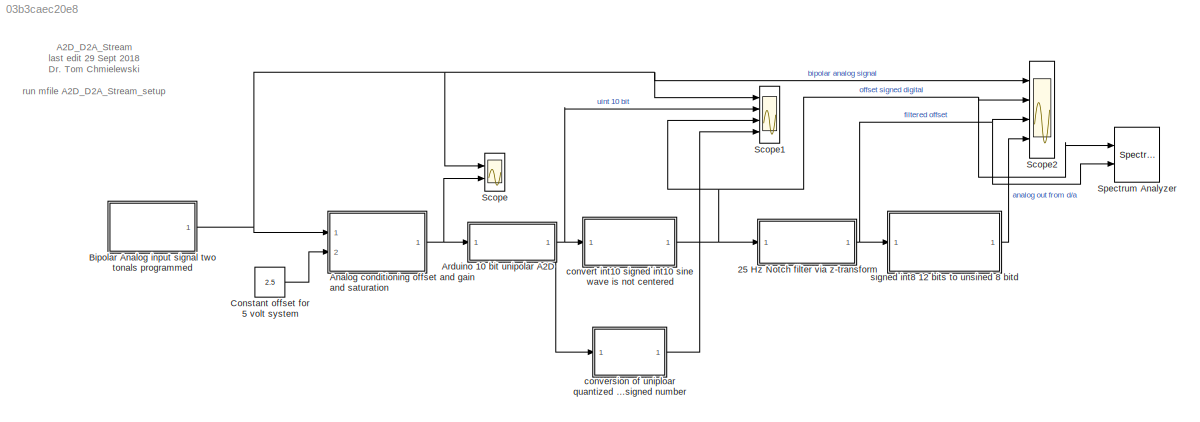
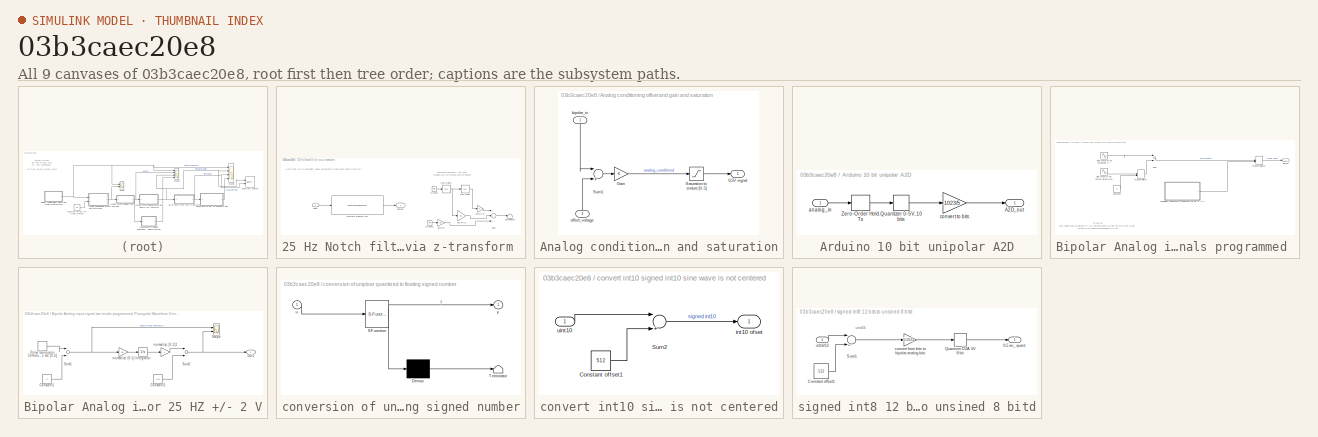
[diagram: thumbnail index - all 9 canvases of the model, root first then tree order]
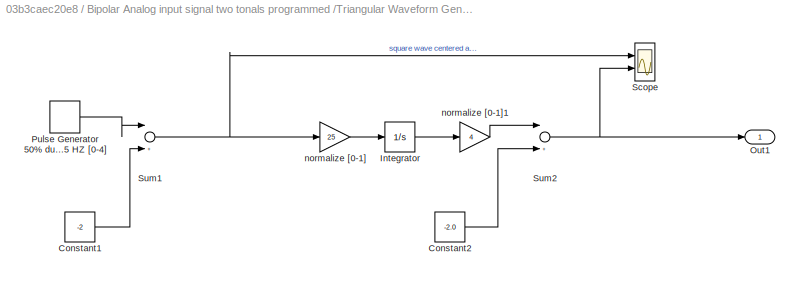
MODEL slx_03b3caec20e8
KIND model
CONFIG AbsTol = auto
CONFIG EnableMultiTasking = off
CONFIG FixedStep = Ts
CONFIG MaxStep = auto
CONFIG MinStep = auto
CONFIG RelTol = 1e-3
CONFIG SampleTimeConstraint = Unconstrained
CONFIG Solver = FixedStepAuto
CONFIG SolverName = FixedStepAuto
CONFIG StartTime = 0.0
CONFIG StopTime = 2
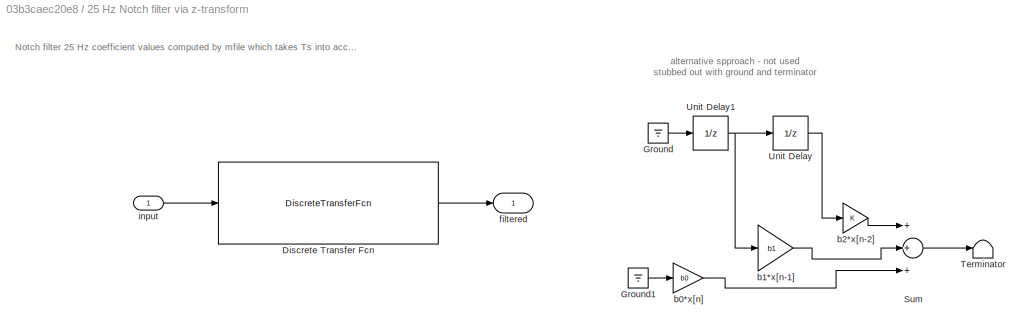
BLOCK [SubSystem] 25 Hz Notch filter via z-transform 
  Ports = [1, 1]
  RequestExecContextInheritance = off
  Variant = off
BLOCK [DiscreteTransferFcn] 25 Hz Notch filter via z-transform /Discrete Transfer Fcn
  Denominator = [1 0 0]
  InputPortMap = u0
  Numerator = [b0 b1 b2 ]
  Ports = [1, 1]
BLOCK [Ground] 25 Hz Notch filter via z-transform /Ground
BLOCK [Ground] 25 Hz Notch filter via z-transform /Ground1
BLOCK [Sum] 25 Hz Notch filter via z-transform /Sum
  InputSameDT = off
  Inputs = +++
  OutDataTypeStr = Inherit: Inherit via internal rule
  Ports = [3, 1]
  SaturateOnIntegerOverflow = off
BLOCK [Terminator] 25 Hz Notch filter via z-transform /Terminator
BLOCK [UnitDelay] 25 Hz Notch filter via z-transform /Unit Delay
  SampleTime = Ts
BLOCK [UnitDelay] 25 Hz Notch filter via z-transform /Unit Delay1
  SampleTime = Ts
BLOCK [Gain] 25 Hz Notch filter via z-transform /b0*x[n]
  Gain = b0
  OutDataTypeStr = Inherit: Inherit via internal rule
  ParamDataTypeStr = Inherit: Inherit via internal rule
  SaturateOnIntegerOverflow = off
BLOCK [Gain] 25 Hz Notch filter via z-transform /b1*x[n-1]
  Gain = b1
  OutDataTypeStr = Inherit: Inherit via internal rule
  ParamDataTypeStr = Inherit: Inherit via internal rule
  SaturateOnIntegerOverflow = off
BLOCK [Gain] 25 Hz Notch filter via z-transform /b2*x[n-2]
  OutDataTypeStr = Inherit: Inherit via internal rule
  ParamDataTypeStr = Inherit: Inherit via internal rule
  SaturateOnIntegerOverflow = off
BLOCK [Outport] 25 Hz Notch filter via z-transform /filtered 
  IconDisplay = Port number
BLOCK [Inport] 25 Hz Notch filter via z-transform /input
  IconDisplay = Port number
BLOCK [SubSystem] Analog conditioning offset and gain and saturation
  Ports = [2, 1]
  RequestExecContextInheritance = off
  Variant = off
BLOCK [Outport] Analog conditioning offset and gain and saturation/0-5V signal
  IconDisplay = Port number
BLOCK [Gain] Analog conditioning offset and gain and saturation/Gain
  OutDataTypeStr = Inherit: Inherit via internal rule
  ParamDataTypeStr = Inherit: Inherit via internal rule
  SaturateOnIntegerOverflow = off
BLOCK [Saturate] Analog conditioning offset and gain and saturation/Saturation to endure [0, 5]
  InputPortMap = u0
  LowerLimit = 0
  Ports = [1, 1]
  UpperLimit = 5.0
BLOCK [Sum] Analog conditioning offset and gain and saturation/Sum1
  InputSameDT = off
  Inputs = |++
  OutDataTypeStr = Inherit: Inherit via internal rule
  Ports = [2, 1]
  SaturateOnIntegerOverflow = off
BLOCK [Inport] Analog conditioning offset and gain and saturation/bipolar_in
  IconDisplay = Port number
BLOCK [Inport] Analog conditioning offset and gain and saturation/offset_voltage
  IconDisplay = Port number
  Port = 2
BLOCK [SubSystem] Arduino 10 bit unipolar A2D
  Ports = [1, 1]
  RequestExecContextInheritance = off
  Variant = off
BLOCK [Outport] Arduino 10 bit unipolar A2D/A2D_out
  IconDisplay = Port number
BLOCK [Quantizer] Arduino 10 bit unipolar A2D/Quantizer 0-5V, 10 bits
  QuantizationInterval = (5/2^10)
BLOCK [ZeroOrderHold] Arduino 10 bit unipolar A2D/Zero-Order Hold, Ts
  SampleTime = Ts
BLOCK [Inport] Arduino 10 bit unipolar A2D/analog_in
  IconDisplay = Port number
BLOCK [Gain] Arduino 10 bit unipolar A2D/convert to bits
  Gain = 1023/5
  OutDataTypeStr = Inherit: Inherit via internal rule
  ParamDataTypeStr = Inherit: Inherit via internal rule
  SaturateOnIntegerOverflow = off
BLOCK [SubSystem] Bipolar Analog input signal two tonals programmed 
  Ports = [0, 1]
  RequestExecContextInheritance = off
  Variant = off
BLOCK [Constant] Bipolar Analog input signal two tonals programmed /Constant
  Value = 0
BLOCK [ManualSwitch] Bipolar Analog input signal two tonals programmed /Manual Switch
BLOCK [ManualSwitch] Bipolar Analog input signal two tonals programmed /Manual Switch1
BLOCK [Sin] Bipolar Analog input signal two tonals programmed /Sine Wave 50 Hz  amplitude 1.7
  Amplitude = 1.7
  Frequency = (2*pi)*50
  Ports = [0, 1]
  SampleTime = 0
BLOCK [Sin] Bipolar Analog input signal two tonals programmed /Sine Wave to be notched Fn 25 Hz analog amplitude 0,66
  Amplitude = 0.66
  Frequency = (2*pi)*25
  Ports = [0, 1]
  SampleTime = 0
BLOCK [Sum] Bipolar Analog input signal two tonals programmed /Sum
  InputSameDT = off
  Inputs = |++
  OutDataTypeStr = Inherit: Inherit via internal rule
  Ports = [2, 1]
  SaturateOnIntegerOverflow = off
BLOCK [SubSystem] Bipolar Analog input signal two tonals programmed /Triangular Waveform Generator 25 HZ +//- 2 V
  Ports = [0, 1]
  RequestExecContextInheritance = off
  Variant = off
BLOCK [Constant] Bipolar Analog input signal two tonals programmed /Triangular Waveform Generator 25 HZ +//- 2 V/Constant1
  Value = -2
BLOCK [Constant] Bipolar Analog input signal two tonals programmed /Triangular Waveform Generator 25 HZ +//- 2 V/Constant2
  Value = -2.0
BLOCK [Integrator] Bipolar Analog input signal two tonals programmed /Triangular Waveform Generator 25 HZ +//- 2 V/Integrator
  Ports = [1, 1]
BLOCK [Outport] Bipolar Analog input signal two tonals programmed /Triangular Waveform Generator 25 HZ +//- 2 V/Out1
  IconDisplay = Port number
BLOCK [DiscretePulseGenerator] Bipolar Analog input signal two tonals programmed /Triangular Waveform Generator 25 HZ +//- 2 V/Pulse Generator 50% duty 25 HZ [0-4]
  Amplitude = 4
  Period = 1/25
  Ports = [0, 1]
  PulseType = Time based
  PulseWidth = 50
BLOCK [Scope] Bipolar Analog input signal two tonals programmed /Triangular Waveform Generator 25 HZ +//- 2 V/Scope
  NumInputPorts = 2
  Ports = [2]
  ScopeSpecificationString = Simulink.scopes.TimeScopeBlockCfg('CurrentConfiguration', extmgr.ConfigurationSet(extmgr.Configuration('Core','General UI',true),extmgr.Configuration('Core','Source UI',true),extmgr.Configuration('Sources','WiredSimulink',true,'DataLoggingVariableName','ScopeData1'),extmgr.Configuration('Visuals','Time Domain',true,'SerializedDisplays',{struct('MinYLimReal','-2.5','MaxYLimReal','2.5','YLabelReal',...<+2116ch>
BLOCK [Sum] Bipolar Analog input signal two tonals programmed /Triangular Waveform Generator 25 HZ +//- 2 V/Sum1
  InputSameDT = off
  Inputs = |++
  OutDataTypeStr = Inherit: Inherit via internal rule
  Ports = [2, 1]
  SaturateOnIntegerOverflow = off
BLOCK [Sum] Bipolar Analog input signal two tonals programmed /Triangular Waveform Generator 25 HZ +//- 2 V/Sum2
  InputSameDT = off
  Inputs = |++
  OutDataTypeStr = Inherit: Inherit via internal rule
  Ports = [2, 1]
  SaturateOnIntegerOverflow = off
BLOCK [Gain] Bipolar Analog input signal two tonals programmed /Triangular Waveform Generator 25 HZ +//- 2 V/normalize [0-1]
  Gain = 25
  OutDataTypeStr = Inherit: Inherit via internal rule
  ParamDataTypeStr = Inherit: Inherit via internal rule
  SaturateOnIntegerOverflow = off
BLOCK [Gain] Bipolar Analog input signal two tonals programmed /Triangular Waveform Generator 25 HZ +//- 2 V/normalize [0-1]1
  Gain = 4
  OutDataTypeStr = Inherit: Inherit via internal rule
  ParamDataTypeStr = Inherit: Inherit via internal rule
  SaturateOnIntegerOverflow = off
BLOCK [Outport] Bipolar Analog input signal two tonals programmed /sig_out
  IconDisplay = Port number
BLOCK [Constant] Constant offset for 5 volt system
  Value = 2.5
BLOCK [Scope] Scope
  NumInputPorts = 2
  Ports = [2]
  ScopeSpecificationString = Simulink.scopes.TimeScopeBlockCfg('CurrentConfiguration', extmgr.ConfigurationSet(extmgr.Configuration('Core','General UI',true),extmgr.Configuration('Core','Source UI',true),extmgr.Configuration('Sources','WiredSimulink',true),extmgr.Configuration('Visuals','Time Domain',true,'SerializedDisplays',{struct('MinYLimReal','-2.5','MaxYLimReal','2.5','YLabelReal','','MinYLimMag','0.00000','MaxYLimMag',...<+2099ch>
BLOCK [Scope] Scope1
  NumInputPorts = 4
  Ports = [4]
  ScopeSpecificationString = Simulink.scopes.TimeScopeBlockCfg('CurrentConfiguration', extmgr.ConfigurationSet(extmgr.Configuration('Core','General UI',true),extmgr.Configuration('Core','Source UI',true),extmgr.Configuration('Sources','WiredSimulink',true,'DataLoggingVariableName','ScopeData1'),extmgr.Configuration('Visuals','Time Domain',true,'SerializedDisplays',{struct('MinYLimReal','-2.5','MaxYLimReal','2.5','YLabelReal',...<+3737ch>
BLOCK [Scope] Scope2
  NumInputPorts = 4
  Ports = [4]
  ScopeSpecificationString = Simulink.scopes.TimeScopeBlockCfg('CurrentConfiguration', extmgr.ConfigurationSet(extmgr.Configuration('Core','General UI',true),extmgr.Configuration('Core','Source UI',true),extmgr.Configuration('Sources','WiredSimulink',true,'DataLoggingVariableName','ScopeData2'),extmgr.Configuration('Visuals','Time Domain',true,'SerializedDisplays',{struct('MinYLimReal','-2.5','MaxYLimReal','2.5','YLabelReal',...<+3492ch>
BLOCK [SpectrumAnalyzer] Spectrum Analyzer
  NumInputPorts = 2
  Ports = [2]
  ScopeSpecificationString = spbscopes.SpectrumAnalyzerBlockCfg('CurrentConfiguration', extmgr.ConfigurationSet(extmgr.Configuration('Core','General UI',true),extmgr.Configuration('Core','Source UI',true),extmgr.Configuration('Sources','WiredSimulink',true),extmgr.Configuration('Visuals','Spectrum',true,'AxesProperties',struct('Color',{[0 0 0],[0 0 0]},'XColor',{[0.686274509803922 0.686274509803922 0.686274509803922],[0.68627...<+1858ch>
BLOCK [SubSystem] conversion of uniploar quantized to floating signed number
  ErrorFcn = Stateflow.Translate.translate
  PermitHierarchicalResolution = ExplicitOnly
  Ports = [1, 1]
  RequestExecContextInheritance = off
  SFBlockType = MATLAB Function
  TreatAsAtomicUnit = on
  Variant = off
BLOCK [Demux] conversion of uniploar quantized to floating signed number/ Demux 
  Outputs = 1
  Ports = [1, 1]
BLOCK [S-Function] conversion of uniploar quantized to floating signed number/ SFunction 
  EnableBusSupport = on
  FunctionName = sf_sfun
  PortCounts = [1 2]
  Ports = [1, 2]
  SFcnIsStateOwnerBlock = off
  SFunctionDeploymentMode = off
  Tag = Stateflow S-Function A2d_D2A_Stream 1
BLOCK [Terminator] conversion of uniploar quantized to floating signed number/ Terminator 
BLOCK [Inport] conversion of uniploar quantized to floating signed number/u
  IconDisplay = Port number
BLOCK [Outport] conversion of uniploar quantized to floating signed number/y
  IconDisplay = Port number
BLOCK [SubSystem] convert int10 signed int10 sine wave is not centered
  Ports = [1, 1]
  RequestExecContextInheritance = off
  Variant = off
BLOCK [Constant] convert int10 signed int10 sine wave is not centered/Constant offset1
  Value = 512
BLOCK [Sum] convert int10 signed int10 sine wave is not centered/Sum2
  InputSameDT = off
  Inputs = |+-
  OutDataTypeStr = Inherit: Inherit via internal rule
  Ports = [2, 1]
  SaturateOnIntegerOverflow = off
BLOCK [Outport] convert int10 signed int10 sine wave is not centered/int10 ofset
  IconDisplay = Port number
BLOCK [Inport] convert int10 signed int10 sine wave is not centered/uint10
  IconDisplay = Port number
BLOCK [SubSystem] signed int8 12 bits to unsined 8 bitd
  Ports = [1, 1]
  RequestExecContextInheritance = off
  Variant = off
BLOCK [Outport] signed int8 12 bits to unsined 8 bitd/0-5 an_ quant
  IconDisplay = Port number
BLOCK [Constant] signed int8 12 bits to unsined 8 bitd/Constant offset1
  Value = 512
BLOCK [Quantizer] signed int8 12 bits to unsined 8 bitd/Quantizer D2A 5V 8 bit
  QuantizationInterval = (5/2^8)
BLOCK [Sum] signed int8 12 bits to unsined 8 bitd/Sum1
  InputSameDT = off
  Inputs = |++
  OutDataTypeStr = Inherit: Inherit via internal rule
  Ports = [2, 1]
  SaturateOnIntegerOverflow = off
BLOCK [Gain] signed int8 12 bits to unsined 8 bitd/convert from bits  to bipolar analog bits
  Gain = 5/1023
  OutDataTypeStr = Inherit: Inherit via internal rule
  ParamDataTypeStr = Inherit: Inherit via internal rule
  SaturateOnIntegerOverflow = off
BLOCK [Inport] signed int8 12 bits to unsined 8 bitd/int16//12
  IconDisplay = Port number
ANNOTATION (root): A2D_D2A_Stream last edit 29 Sept 2018 Dr. Tom Chmielewski run mfile A2D_D2A_Stream_setup
ANNOTATION 25 Hz Notch filter via z-transform : Notch filter 25 Hz coefficient values computed by mfile which takes Ts into account
ANNOTATION 25 Hz Notch filter via z-transform : alternative spproach - not used stubbed out with ground and terminator
ANNOTATION Bipolar Analog input signal two tonals programmed : Fs 500 Hz both signals have amplitude of 2 for demonstration so that we can offset in analog domain remove 25 Hz signal corresponding to 0.1*pi
ANNOTATION signed int8 12 bits to unsined 8 bitd: uint16
LINE 25 Hz Notch filter via z-transform /Discrete Transfer Fcn:1 -> 25 Hz Notch filter via z-transform /filtered :1
LINE 25 Hz Notch filter via z-transform /Ground1:1 -> 25 Hz Notch filter via z-transform /b0*x[n]:1
LINE 25 Hz Notch filter via z-transform /Ground:1 -> 25 Hz Notch filter via z-transform /Unit Delay1:1
LINE 25 Hz Notch filter via z-transform /Sum:1 -> 25 Hz Notch filter via z-transform /Terminator:1
NET 25 Hz Notch filter via z-transform /Unit Delay1:1 -> 25 Hz Notch filter via z-transform /Unit Delay:1, 25 Hz Notch filter via z-transform /b1*x[n-1]:1
LINE 25 Hz Notch filter via z-transform /Unit Delay:1 -> 25 Hz Notch filter via z-transform /b2*x[n-2]:1
LINE 25 Hz Notch filter via z-transform /b0*x[n]:1 -> 25 Hz Notch filter via z-transform /Sum:3
LINE 25 Hz Notch filter via z-transform /b1*x[n-1]:1 -> 25 Hz Notch filter via z-transform /Sum:2
LINE 25 Hz Notch filter via z-transform /b2*x[n-2]:1 -> 25 Hz Notch filter via z-transform /Sum:1
LINE 25 Hz Notch filter via z-transform /input:1 -> 25 Hz Notch filter via z-transform /Discrete Transfer Fcn:1
NET 25 Hz Notch filter via z-transform :1 -> Scope2:3, Spectrum Analyzer:2, signed int8 12 bits to unsined 8 bitd:1
LINE Analog conditioning offset and gain and saturation/Gain:1 -> Analog conditioning offset and gain and saturation/Saturation to endure [0, 5]:1
LINE Analog conditioning offset and gain and saturation/Saturation to endure [0, 5]:1 -> Analog conditioning offset and gain and saturation/0-5V signal:1
LINE Analog conditioning offset and gain and saturation/Sum1:1 -> Analog conditioning offset and gain and saturation/Gain:1
LINE Analog conditioning offset and gain and saturation/bipolar_in:1 -> Analog conditioning offset and gain and saturation/Sum1:1
LINE Analog conditioning offset and gain and saturation/offset_voltage:1 -> Analog conditioning offset and gain and saturation/Sum1:2
NET Analog conditioning offset and gain and saturation:1 -> Arduino 10 bit unipolar A2D:1, Scope:2
LINE Arduino 10 bit unipolar A2D/Quantizer 0-5V, 10 bits:1 -> Arduino 10 bit unipolar A2D/convert to bits:1
LINE Arduino 10 bit unipolar A2D/Zero-Order Hold, Ts:1 -> Arduino 10 bit unipolar A2D/Quantizer 0-5V, 10 bits:1
LINE Arduino 10 bit unipolar A2D/analog_in:1 -> Arduino 10 bit unipolar A2D/Zero-Order Hold, Ts:1
LINE Arduino 10 bit unipolar A2D/convert to bits:1 -> Arduino 10 bit unipolar A2D/A2D_out:1
NET Arduino 10 bit unipolar A2D:1 -> Scope1:2, conversion of uniploar quantized to floating signed number:1, convert int10 signed int10 sine wave is not centered:1
LINE Bipolar Analog input signal two tonals programmed /Constant:1 -> Bipolar Analog input signal two tonals programmed /Manual Switch:2
LINE Bipolar Analog input signal two tonals programmed /Manual Switch1:1 -> Bipolar Analog input signal two tonals programmed /sig_out:1
LINE Bipolar Analog input signal two tonals programmed /Manual Switch:1 -> Bipolar Analog input signal two tonals programmed /Sum:2
LINE Bipolar Analog input signal two tonals programmed /Sine Wave 50 Hz  amplitude 1.7:1 -> Bipolar Analog input signal two tonals programmed /Sum:1
LINE Bipolar Analog input signal two tonals programmed /Sine Wave to be notched Fn 25 Hz analog amplitude 0,66:1 -> Bipolar Analog input signal two tonals programmed /Manual Switch:1
LINE Bipolar Analog input signal two tonals programmed /Sum:1 -> Bipolar Analog input signal two tonals programmed /Manual Switch1:1
LINE Bipolar Analog input signal two tonals programmed /Triangular Waveform Generator 25 HZ +//- 2 V/Constant1:1 -> Bipolar Analog input signal two tonals programmed /Triangular Waveform Generator 25 HZ +//- 2 V/Sum1:2
LINE Bipolar Analog input signal two tonals programmed /Triangular Waveform Generator 25 HZ +//- 2 V/Constant2:1 -> Bipolar Analog input signal two tonals programmed /Triangular Waveform Generator 25 HZ +//- 2 V/Sum2:2
LINE Bipolar Analog input signal two tonals programmed /Triangular Waveform Generator 25 HZ +//- 2 V/Integrator:1 -> Bipolar Analog input signal two tonals programmed /Triangular Waveform Generator 25 HZ +//- 2 V/normalize [0-1]1:1
LINE Bipolar Analog input signal two tonals programmed /Triangular Waveform Generator 25 HZ +//- 2 V/Pulse Generator 50% duty 25 HZ [0-4]:1 -> Bipolar Analog input signal two tonals programmed /Triangular Waveform Generator 25 HZ +//- 2 V/Sum1:1
NET Bipolar Analog input signal two tonals programmed /Triangular Waveform Generator 25 HZ +//- 2 V/Sum1:1 -> Bipolar Analog input signal two tonals programmed /Triangular Waveform Generator 25 HZ +//- 2 V/Scope:1, Bipolar Analog input signal two tonals programmed /Triangular Waveform Generator 25 HZ +//- 2 V/normalize [0-1]:1
NET Bipolar Analog input signal two tonals programmed /Triangular Waveform Generator 25 HZ +//- 2 V/Sum2:1 -> Bipolar Analog input signal two tonals programmed /Triangular Waveform Generator 25 HZ +//- 2 V/Out1:1, Bipolar Analog input signal two tonals programmed /Triangular Waveform Generator 25 HZ +//- 2 V/Scope:2
LINE Bipolar Analog input signal two tonals programmed /Triangular Waveform Generator 25 HZ +//- 2 V/normalize [0-1]1:1 -> Bipolar Analog input signal two tonals programmed /Triangular Waveform Generator 25 HZ +//- 2 V/Sum2:1
LINE Bipolar Analog input signal two tonals programmed /Triangular Waveform Generator 25 HZ +//- 2 V/normalize [0-1]:1 -> Bipolar Analog input signal two tonals programmed /Triangular Waveform Generator 25 HZ +//- 2 V/Integrator:1
LINE Bipolar Analog input signal two tonals programmed /Triangular Waveform Generator 25 HZ +//- 2 V:1 -> Bipolar Analog input signal two tonals programmed /Manual Switch1:2
NET Bipolar Analog input signal two tonals programmed :1 -> Analog conditioning offset and gain and saturation:1, Scope1:1, Scope2:1, Scope:1
LINE Constant offset for 5 volt system:1 -> Analog conditioning offset and gain and saturation:2
LINE conversion of uniploar quantized to floating signed number:1 -> Scope1:4
LINE convert int10 signed int10 sine wave is not centered/Constant offset1:1 -> convert int10 signed int10 sine wave is not centered/Sum2:2
LINE convert int10 signed int10 sine wave is not centered/Sum2:1 -> convert int10 signed int10 sine wave is not centered/int10 ofset:1
LINE convert int10 signed int10 sine wave is not centered/uint10:1 -> convert int10 signed int10 sine wave is not centered/Sum2:1
NET convert int10 signed int10 sine wave is not centered:1 -> 25 Hz Notch filter via z-transform :1, Scope1:3, Scope2:2, Spectrum Analyzer:1
LINE signed int8 12 bits to unsined 8 bitd/Constant offset1:1 -> signed int8 12 bits to unsined 8 bitd/Sum1:2
LINE signed int8 12 bits to unsined 8 bitd/Quantizer D2A 5V 8 bit:1 -> signed int8 12 bits to unsined 8 bitd/0-5 an_ quant:1
LINE signed int8 12 bits to unsined 8 bitd/Sum1:1 -> signed int8 12 bits to unsined 8 bitd/convert from bits  to bipolar analog bits:1
LINE signed int8 12 bits to unsined 8 bitd/convert from bits  to bipolar analog bits:1 -> signed int8 12 bits to unsined 8 bitd/Quantizer D2A 5V 8 bit:1
LINE signed int8 12 bits to unsined 8 bitd/int16//12:1 -> signed int8 12 bits to unsined 8 bitd/Sum1:1
LINE signed int8 12 bits to unsined 8 bitd:1 -> Scope2:4
note: NET lines group one-source signal fan-out (src -> all destinations, sorted); 1:1 wires keep LINE
CHART conversion of uniploar
quantized to floating signed number states=1 transitions=1
  STATE_LABEL 'eML_blk_kernel()'
  STATE_LABEL 'SCRIPT:\nfunction y = fcn(u)\n% input is level shifted and quantized analog signal\n% this is converted to uint16 to simulate an unsigned 12 bit integer\n% then level shifted by 512 and converted to a double \n% at this point the singla procesing is performed\n% after signal processing it is converted to an unsigned integeer\n% uint8 to perpare for the D/A output\n\nuu = uint16(u); % unsigned 16 bit corrsp...<+86ch>'
